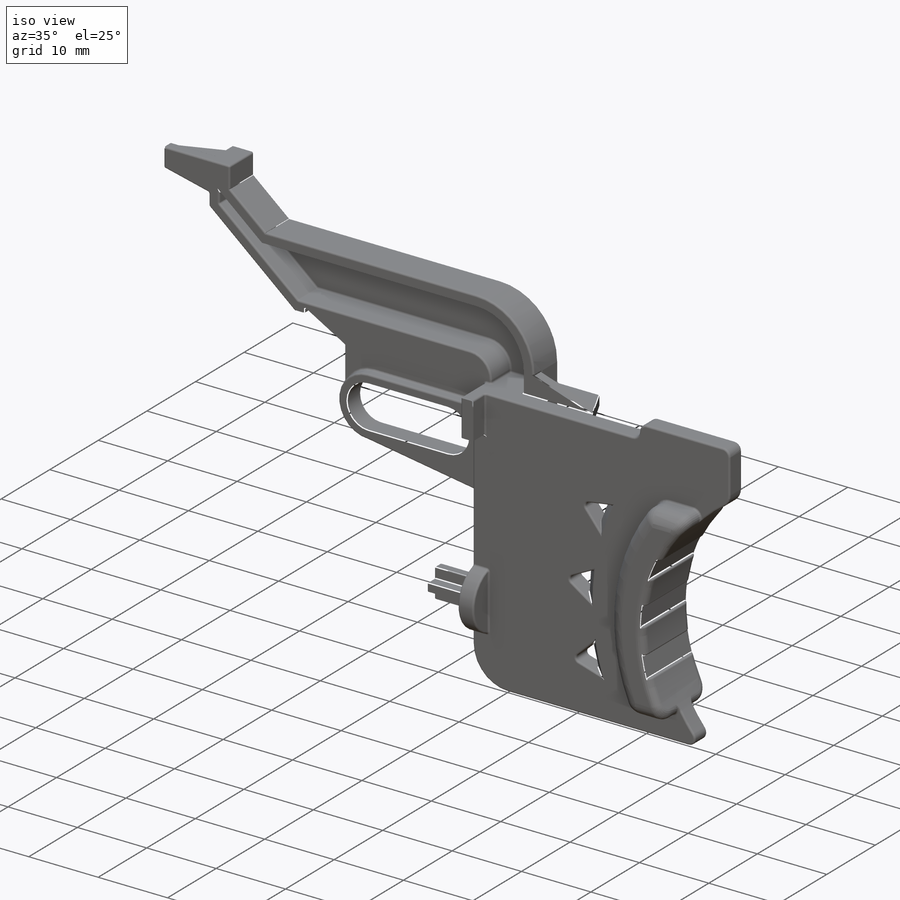
[diagram: iso view]
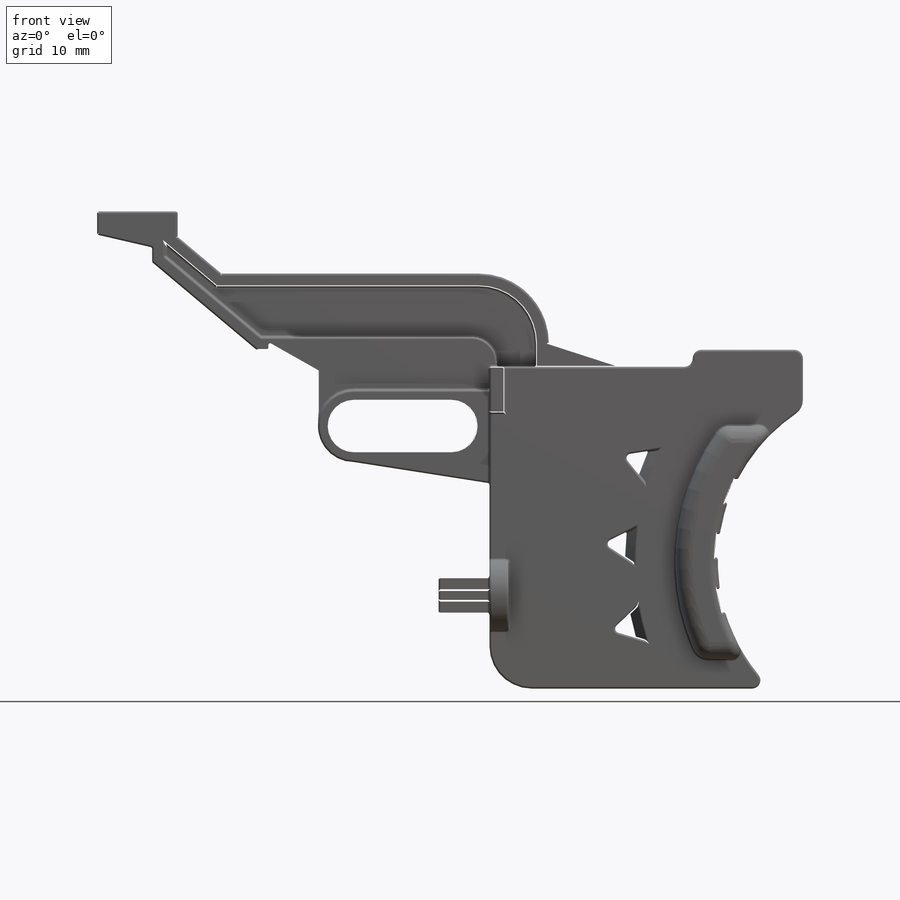
[diagram: front view]
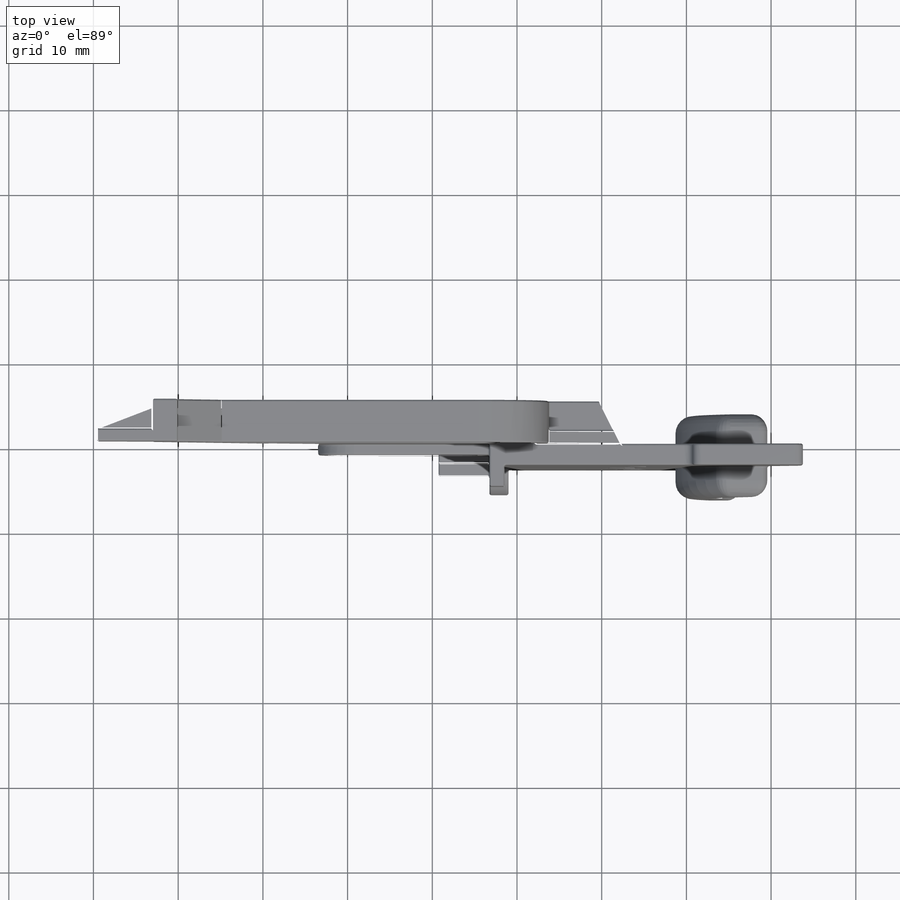
[diagram: top view]
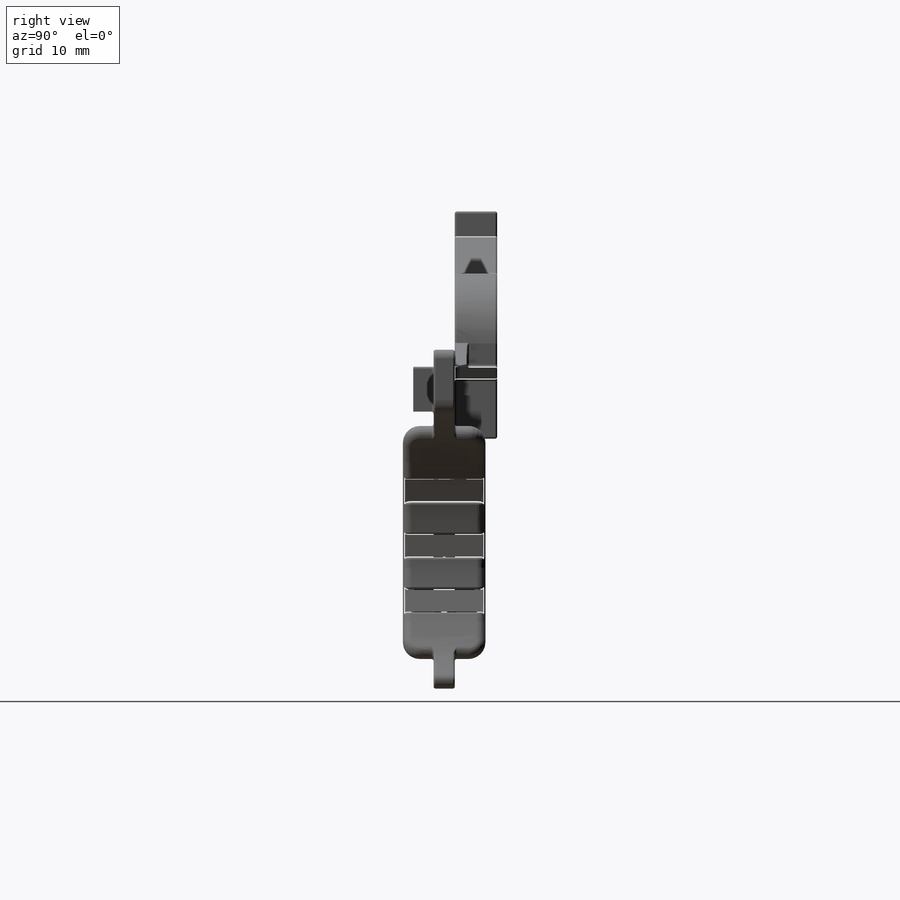
[diagram: right view]
SOLIDWORKS PART (.sldprt)
format: sldprt  version: not decoded by parser v0  size: 2,512,896 bytes
history: native  units: mm
features: fillet x21, sketch x17, extrude x12, cut_extrude x5, chamfer x2, material x1 (+11 scaffold rows collapsed)
feature tree (69):
  scaffold x11  (default folders/planes/origin — collapsed)
  material  "Material <not specified>"
  sketch  "Sketch1"  dims[c1.D1=~21.093242mm c1.D6=~21.093242mm c2.D1=33.25mm c2.D2=38.0mm c2.D3=2.0mm c2.D4=13.0mm c2.D5=7.0mm c2.D7=24.0mm]
  extrude  "Boss-Extrude1"  Depth=2.5mm
  sketch  "Sketch2"  dims[c1.D1=~8.533129mm c1.D3=8.5mm c1.D6=3.0mm c2.D1=11.0mm c2.D2=2.75mm c2.D4=16.0mm c2.D5=11.5mm]
  extrude  "Boss-Extrude2"  Depth=1.25mm
  sketch  "Sketch5"  dims[c1.D1=18.0mm c1.D2=14.0mm c1.D3=28.0mm c1.D4=8.0mm c1.D5=~4.187851mm c2.D4=6.5mm c2.D5=0.0mm]
  extrude  "Boss-Extrude5"  Depth=1.5mm
  sketch  "Sketch6"  dims[c1.D1=0.0mm c1.D2=8.5mm c1.D3=8.5mm c1.D4=7.0mm c1.D5=1.5mm c1.D6=7.0mm c1.D7=1.5mm c1.D8=0.651mm c2.D8=~60.524111deg c3.D8=0.75mm c3.D9=1.5mm c3.D10=6.0mm c3.D11=3.0mm c3.D12=3.0mm c3.D13=8.25mm c3.D14=16.0mm c3.D15=6.75mm c3.D16=1.5mm c3.D17=0.0mm c3.D18=0.0mm c3.D19=~46.454308mm c4.D14=16.0mm c5.D14=140.0deg]
  extrude  "Boss-Extrude6"  Depth=5mm
  sketch  "Sketch7"  dims[D1=9.5mm D2=2.75mm D3=1.75mm]
  extrude  "Boss-Extrude7"  Depth=1.5mm
  sketch  "Sketch8"  dims[D1=1.0mm]
  extrude  "Boss-Extrude8"  Depth=1.25mm
  sketch  "Sketch9"  dims[D1=2.5mm]
  cut_extrude  "Cut-Extrude2"  Depth=1.5mm
  sketch  "Sketch11"  dims[D1=2.75mm]
  extrude  "Boss-Extrude9"  Depth=1.5mm
  sketch  "Sketch12"  dims[D1=1.5mm]
  cut_extrude  "Cut-Extrude3"  Depth=1.5mm
  sketch  "Sketch13"  dims[D1=1.5mm D2=4.5mm]
  extrude  "Boss-Extrude10"  Depth=1.5mm
  sketch  "Sketch14"  dims[c1.D1=~5.314571mm c1.D2=~2.648121mm c2.D1=1.75mm c2.D2=5.4mm]
  extrude  "Boss-Extrude11"  Depth=2.5mm
  sketch  "Sketch15"  dims[c1.D1=8.75mm c1.D2=~1.164418mm c1.D3=24.25mm c2.D2=1.25mm c2.D3=~3.459356mm c3.D2=1.25mm c3.D3=11.0mm]
  extrude  "Boss-Extrude12"  Depth=2.25mm
  sketch  "Sketch16"  dims[c1.D1=~1.350839mm c1.D2=~5.034945mm c2.D1=~5.403356mm c2.D2=~1.694689mm c3.D1=1.25mm c3.D2=4.25mm c3.D3=1.25mm c3.D4=4.25mm c3.D5=1.5mm c3.D6=1.5mm c3.D7=0.625mm c3.D8=0.625mm]
  extrude  "Boss-Extrude13"  Depth=6mm
  sketch  "Sketch17"  dims[D2=3.5mm D1=1.5mm]
  fillet  "Fillet1"  Radius=3mm
  cut_extrude  "Cut-Extrude5"  Depth=4mm
  sketch  "Sketch18"  dims[c1.D1=64.2mm c1.D2=6.0mm c1.D3=3.0mm c1.D4=3.0mm c1.D5=3.0mm c1.D6=3.0mm c1.D7=3.0mm c1.D8=3.0mm c1.D9=15.5mm c1.D10=3.0mm c1.D11=3.0mm c1.D12=3.0mm c2.D3=3.0mm c2.D8=3.0mm c2.D13=25.25mm]
  cut_extrude  "Cut-Extrude6"  Depth=4mm
  fillet  "Fillet2"  Radius=0.5mm
  chamfer  "Chamfer1"  Distance=1.25mm
  chamfer  "Chamfer2"  Distance=1.25mm Angle=45deg
  sketch  "Sketch19"  dims[D1=52.2mm D2=3.5mm D3=9.0mm]
  extrude  "Boss-Extrude14"  Depth=9.75mm
  sketch  "Sketch20"  dims[D1=43.0mm D2=9.0mm D3=2.75mm D4=3.75mm D5=2.75mm D6=3.75mm D7=2.75mm]
  cut_extrude  "Cut-Extrude7"  Depth=9.75mm
  fillet  "Fillet4"  Radius=2mm
  fillet  "Fillet5"  Radius=1mm
  fillet  "Fillet6"  Radius=5mm
  fillet  "Fillet7"  Radius=0.25mm
  fillet  "Fillet8"  Radius=0.25mm
  fillet  "Fillet9"  Radius=0.1mm
  fillet  "Fillet11"  Radius=0.1mm
  fillet  "Fillet12"  Radius=0.1mm
  fillet  "Fillet13"  Radius=0.1mm
  fillet  "Fillet15"  Radius=0.1mm
  fillet  "Fillet16"  Radius=0.1mm
  fillet  "Fillet17"  Radius=0.1mm
  fillet  "Fillet18"  Radius=0.1mm
  fillet  "Fillet19"  Radius=0.1mm
  fillet  "Fillet20"  Radius=0.1mm
  fillet  "Fillet21"  Radius=0.1mm
  fillet  "Fillet22"  Radius=0.1mm
  fillet  "Fillet23"  Radius=0.1mm
  fillet  "Fillet24"  Radius=0.1mm
decode coverage: 57 of 57 modeling features carry decoded parameters
note: ~ marks probable driven/reference dimensions
note: suppression state not decoded; provenance and decode notes live in map.json
